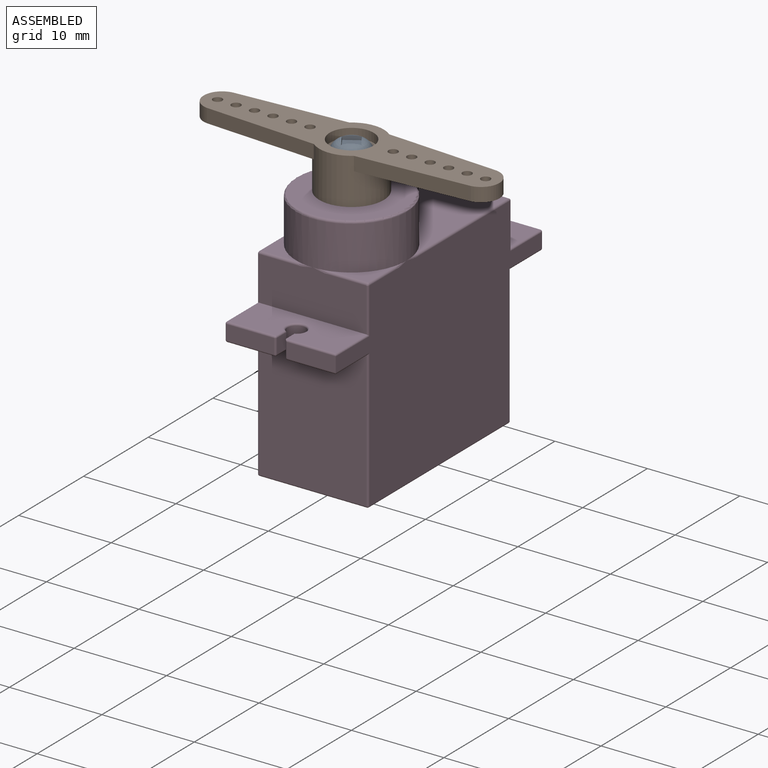
[diagram: assembled view]
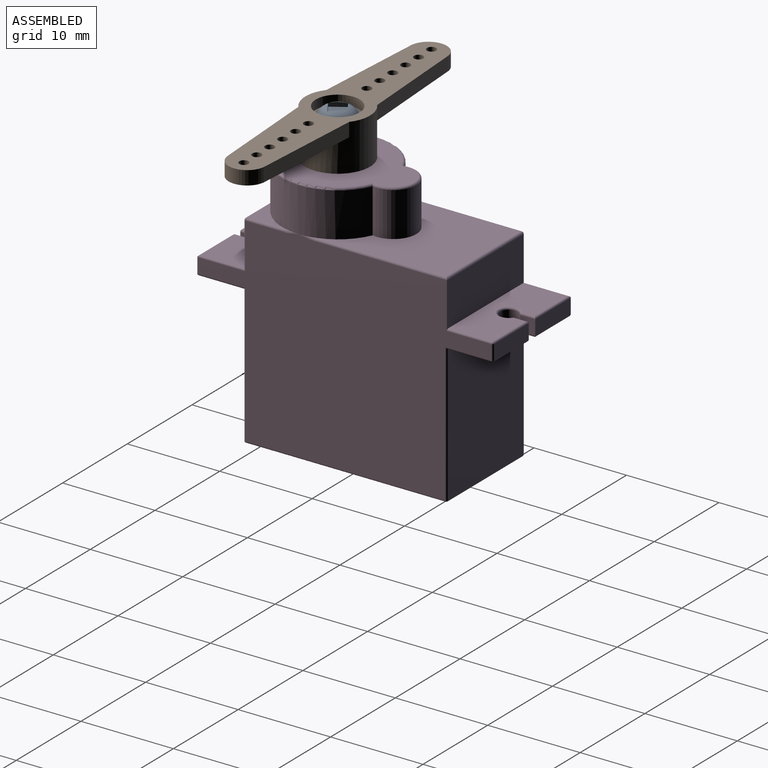
[diagram: assembled view, second angle]
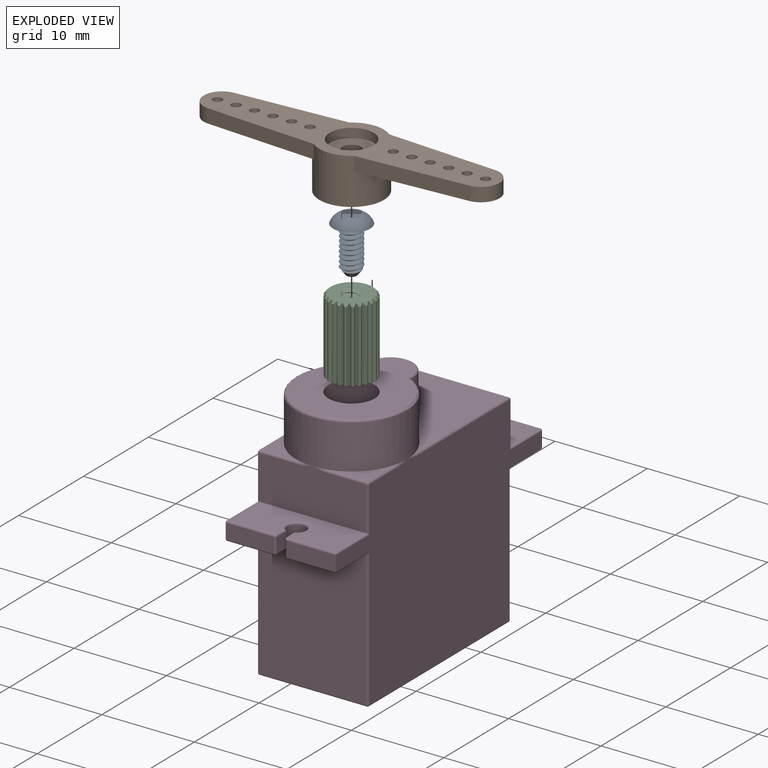
[diagram: exploded view]
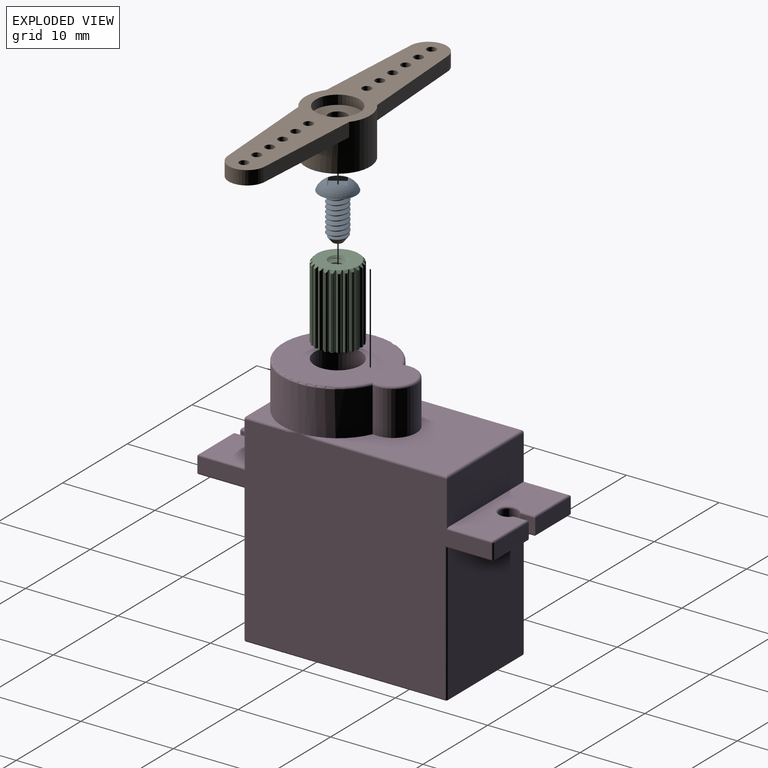
[diagram: exploded view, second angle]
ASSEMBLY  parts=4 mates=3
PART A: 13 faces, bbox 4.3x4.3x6.3 mm
  f0: cylinder r=1.14mm len=4.25mm, axis (0,0,1), area 4.5mm2, adj f1,f3,f4,f5,f6
  f1: cone r=1.14mm half-angle=38.7deg, axis (0,0,1), area 3.3mm2, adj f0,f2,f4,f5
  f2: plane 1.07x1.07mm, normal (0,0,-1), area 0.9mm2, adj f1
  f3: plane 0.28x0.2mm, normal (-0.59,0.81,0), area 0mm2, adj f0,f5,f6
  f4: bspline ~5.06x2.62mm, area 23.9mm2, adj f0,f1,f5,f6
  f5: bspline ~5.06x2.62mm, area 23.4mm2, adj f0,f1,f3,f4,f6
  f6: plane 4.29x4.29mm, normal (0,0,-1), area 9.2mm2, adj f0,f3,f4,f5,f12
  f7: plane 1.5x0.96mm, normal (0.54,-0.84,0), area 0.8mm2, adj f8,f10,f11,f12
  f8: plane 1.5x0.96mm, normal (0.84,0.54,0), area 0.8mm2, adj f7,f9,f11,f12
  f9: plane 1.5x0.96mm, normal (-0.54,0.84,0), area 0.8mm2, adj f8,f10,f11,f12
  f10: plane 1.73x1.19mm, normal (-0.84,-0.54,0), area 0.8mm2, adj f7,f9,f11,f12
  f11: plane 2.46x2.46mm, normal (0,0,1), area 3.2mm2, adj f7,f8,f9,f10
  f12: torus R=0.59mm, axis (0,0,-1), area 14mm2, adj f6,f7,f8,f9,f10
PART B: 123 faces, bbox 32x7x5 mm
  f0: cylinder r=3.5mm len=7mm, axis (0,0,-1), area 91mm2, adj f3,f4,f6,f13,f14,f113,f114,f116
  f1: plane 4.98x4.98mm, normal (0,0,1), area 15mm2, adj f2,f17,f18,f19,f20,f21,f22,f23
  f2: cylinder r=1mm len=2mm, axis (0,0,-1), area 7.9mm2, adj f1,f16
  f3: plane 13.84x5.5mm, normal (0,0,1), area 52.7mm2, adj f0,f4,f5,f6,f7,f8,f9,f10
  f4: plane 11.84x1.5mm, normal (-0.06,1,0), area 17.8mm2, adj f0,f3,f5,f13
  f5: cylinder r=2mm len=4mm, axis (0,0,-1), area 9.4mm2, adj f3,f4,f6,f13
  f6: plane 11.84x1.5mm, normal (-0.06,-1,0), area 17.8mm2, adj f0,f3,f5,f13
  f7: cylinder r=0.5mm len=1.5mm, axis (0,0,-1), area 4.7mm2, adj f3,f13
  f8: cylinder r=0.5mm len=1.5mm, axis (0,0,-1), area 4.7mm2, adj f3,f13
  f9: cylinder r=0.5mm len=1.5mm, axis (0,0,-1), area 4.7mm2, adj f3,f13
  f10: cylinder r=0.5mm len=1.5mm, axis (0,0,-1), area 4.7mm2, adj f3,f13
  f11: cylinder r=0.5mm len=1.5mm, axis (0,0,-1), area 4.7mm2, adj f3,f13
  f12: cylinder r=0.5mm len=1.5mm, axis (0,0,-1), area 4.7mm2, adj f3,f13
  f13: plane 32x7mm, normal (0,0,-1), area 126.1mm2, adj f0,f4,f5,f6,f7,f8,f9,f10
  f14: plane 7x7mm, normal (0,0,1), area 20.4mm2, adj f0,f17,f18,f19,f20,f21,f22,f23
  f15: cylinder r=2.38mm len=4.75mm, axis (0,0,-1), area 14.9mm2, adj f13,f16
  f16: plane 4.75x4.75mm, normal (0,0,-1), area 14.6mm2, adj f2,f15
  f17: cylinder r=2.25mm len=2.75mm, axis (0,0,1), area 0.2mm2, adj f1,f14,f18,f112
  f18: cylinder r=1.07mm len=2.75mm, axis (0,0,1), area 0.8mm2, adj f1,f14,f17,f19
  f19: cylinder r=26.69mm len=2.75mm, axis (0,0,1), area 0.6mm2, adj f1,f14,f18,f89
  f20: cylinder r=2.25mm len=2.75mm, axis (0,0,1), area 0.2mm2, adj f1,f14,f21,f89
  f21: cylinder r=1.07mm len=2.75mm, axis (0,0,1), area 0.8mm2, adj f1,f14,f20,f22
  f22: cylinder r=26.69mm len=2.75mm, axis (0,0,1), area 0.6mm2, adj f1,f14,f21,f90
  f23: cylinder r=2.25mm len=2.75mm, axis (0,0,1), area 0.2mm2, adj f1,f14,f24,f90
  f24: cylinder r=1.07mm len=2.75mm, axis (0,0,1), area 0.8mm2, adj f1,f14,f23,f25
  f25: cylinder r=26.69mm len=2.75mm, axis (0,0,1), area 0.6mm2, adj f1,f14,f24,f91
  f26: cylinder r=2.25mm len=2.75mm, axis (0,0,1), area 0.2mm2, adj f1,f14,f27,f91
  f27: cylinder r=1.07mm len=2.75mm, axis (0,0,1), area 0.8mm2, adj f1,f14,f26,f28
  f28: cylinder r=26.69mm len=2.75mm, axis (0,0,1), area 0.6mm2, adj f1,f14,f27,f92
  f29: cylinder r=2.25mm len=2.75mm, axis (0,0,1), area 0.2mm2, adj f1,f14,f30,f92
  f30: cylinder r=1.07mm len=2.75mm, axis (0,0,1), area 0.8mm2, adj f1,f14,f29,f31
  f31: cylinder r=26.69mm len=2.75mm, axis (0,0,1), area 0.6mm2, adj f1,f14,f30,f93
  f32: cylinder r=2.25mm len=2.75mm, axis (0,0,1), area 0.2mm2, adj f1,f14,f33,f93
  f33: cylinder r=1.07mm len=2.75mm, axis (0,0,1), area 0.8mm2, adj f1,f14,f32,f34
  f34: cylinder r=26.69mm len=2.75mm, axis (0,0,1), area 0.6mm2, adj f1,f14,f33,f94
  f35: cylinder r=2.25mm len=2.75mm, axis (0,0,1), area 0.2mm2, adj f1,f14,f36,f94
  f36: cylinder r=1.07mm len=2.75mm, axis (0,0,1), area 0.8mm2, adj f1,f14,f35,f37
  f37: cylinder r=26.69mm len=2.75mm, axis (0,0,1), area 0.6mm2, adj f1,f14,f36,f95
  f38: cylinder r=2.25mm len=2.75mm, axis (0,0,1), area 0.2mm2, adj f1,f14,f39,f95
  f39: cylinder r=1.07mm len=2.75mm, axis (0,0,1), area 0.8mm2, adj f1,f14,f38,f40
  f40: cylinder r=26.69mm len=2.75mm, axis (0,0,1), area 0.6mm2, adj f1,f14,f39,f96
  f41: cylinder r=2.25mm len=2.75mm, axis (0,0,1), area 0.2mm2, adj f1,f14,f42,f96
  f42: cylinder r=1.07mm len=2.75mm, axis (0,0,1), area 0.8mm2, adj f1,f14,f41,f43
  f43: cylinder r=26.69mm len=2.75mm, axis (0,0,1), area 0.6mm2, adj f1,f14,f42,f97
  f44: cylinder r=2.25mm len=2.75mm, axis (0,0,1), area 0.2mm2, adj f1,f14,f45,f97
  f45: cylinder r=1.07mm len=2.75mm, axis (0,0,1), area 0.8mm2, adj f1,f14,f44,f46
  f46: cylinder r=26.69mm len=2.75mm, axis (0,0,1), area 0.6mm2, adj f1,f14,f45,f98
  f47: cylinder r=2.25mm len=2.75mm, axis (0,0,1), area 0.2mm2, adj f1,f14,f48,f98
  f48: cylinder r=1.07mm len=2.75mm, axis (0,0,1), area 0.8mm2, adj f1,f14,f47,f49
  f49: cylinder r=26.69mm len=2.75mm, axis (0,0,1), area 0.6mm2, adj f1,f14,f48,f99
  f50: cylinder r=2.25mm len=2.75mm, axis (0,0,1), area 0.2mm2, adj f1,f14,f51,f99
  f51: cylinder r=1.07mm len=2.75mm, axis (0,0,1), area 0.8mm2, adj f1,f14,f50,f52
  f52: cylinder r=26.69mm len=2.75mm, axis (0,0,1), area 0.6mm2, adj f1,f14,f51,f100
  f53: cylinder r=2.25mm len=2.75mm, axis (0,0,1), area 0.2mm2, adj f1,f14,f54,f100
  f54: cylinder r=1.07mm len=2.75mm, axis (0,0,1), area 0.8mm2, adj f1,f14,f53,f55
  f55: cylinder r=26.69mm len=2.75mm, axis (0,0,1), area 0.6mm2, adj f1,f14,f54,f101
  f56: cylinder r=2.25mm len=2.75mm, axis (0,0,1), area 0.2mm2, adj f1,f14,f57,f101
  f57: cylinder r=1.07mm len=2.75mm, axis (0,0,1), area 0.8mm2, adj f1,f14,f56,f58
  f58: cylinder r=26.69mm len=2.75mm, axis (0,0,1), area 0.6mm2, adj f1,f14,f57,f102
  f59: cylinder r=2.25mm len=2.75mm, axis (0,0,1), area 0.2mm2, adj f1,f14,f60,f102
  f60: cylinder r=1.07mm len=2.75mm, axis (0,0,1), area 0.8mm2, adj f1,f14,f59,f61
  f61: cylinder r=26.69mm len=2.75mm, axis (0,0,1), area 0.6mm2, adj f1,f14,f60,f103
  f62: cylinder r=2.25mm len=2.75mm, axis (0,0,1), area 0.2mm2, adj f1,f14,f63,f103
  f63: cylinder r=1.07mm len=2.75mm, axis (0,0,1), area 0.8mm2, adj f1,f14,f62,f64
  f64: cylinder r=26.69mm len=2.75mm, axis (0,0,1), area 0.6mm2, adj f1,f14,f63,f104
  f65: cylinder r=2.25mm len=2.75mm, axis (0,0,1), area 0.2mm2, adj f1,f14,f66,f104
  f66: cylinder r=1.07mm len=2.75mm, axis (0,0,1), area 0.8mm2, adj f1,f14,f65,f67
  f67: cylinder r=26.69mm len=2.75mm, axis (0,0,1), area 0.6mm2, adj f1,f14,f66,f105
  f68: cylinder r=2.25mm len=2.75mm, axis (0,0,1), area 0.2mm2, adj f1,f14,f69,f105
  f69: cylinder r=1.07mm len=2.75mm, axis (0,0,1), area 0.8mm2, adj f1,f14,f68,f70
  f70: cylinder r=26.69mm len=2.75mm, axis (0,0,1), area 0.6mm2, adj f1,f14,f69,f106
  f71: cylinder r=2.25mm len=2.75mm, axis (0,0,1), area 0.2mm2, adj f1,f14,f72,f106
  f72: cylinder r=1.07mm len=2.75mm, axis (0,0,1), area 0.8mm2, adj f1,f14,f71,f73
  f73: cylinder r=26.69mm len=2.75mm, axis (0,0,1), area 0.6mm2, adj f1,f14,f72,f107
  f74: cylinder r=2.25mm len=2.75mm, axis (0,0,1), area 0.2mm2, adj f1,f14,f75,f107
  f75: cylinder r=1.07mm len=2.75mm, axis (0,0,1), area 0.8mm2, adj f1,f14,f74,f76
  f76: cylinder r=26.69mm len=2.75mm, axis (0,0,1), area 0.6mm2, adj f1,f14,f75,f108
  f77: cylinder r=2.25mm len=2.75mm, axis (0,0,1), area 0.2mm2, adj f1,f14,f78,f108
  f78: cylinder r=1.07mm len=2.75mm, axis (0,0,1), area 0.8mm2, adj f1,f14,f77,f79
  f79: cylinder r=26.69mm len=2.75mm, axis (0,0,1), area 0.6mm2, adj f1,f14,f78,f109
  f80: cylinder r=2.25mm len=2.75mm, axis (0,0,1), area 0.2mm2, adj f1,f14,f81,f109
  f81: cylinder r=1.07mm len=2.75mm, axis (0,0,1), area 0.8mm2, adj f1,f14,f80,f82
  f82: cylinder r=26.69mm len=2.75mm, axis (0,0,1), area 0.6mm2, adj f1,f14,f81,f110
  f83: cylinder r=2.25mm len=2.75mm, axis (0,0,1), area 0.2mm2, adj f1,f14,f84,f110
  f84: cylinder r=1.07mm len=2.75mm, axis (0,0,1), area 0.8mm2, adj f1,f14,f83,f85
  f85: cylinder r=26.69mm len=2.75mm, axis (0,0,1), area 0.6mm2, adj f1,f14,f84,f111
  f86: cylinder r=2.25mm len=2.75mm, axis (0,0,1), area 0.2mm2, adj f1,f14,f87,f111
  f87: cylinder r=1.07mm len=2.75mm, axis (0,0,1), area 0.8mm2, adj f1,f14,f86,f88
  f88: cylinder r=26.69mm len=2.75mm, axis (0,0,1), area 0.6mm2, adj f1,f14,f87,f112
  f89: cylinder r=1.07mm len=2.75mm, axis (0,0,1), area 0.8mm2, adj f1,f14,f19,f20
  f90: cylinder r=1.07mm len=2.75mm, axis (0,0,1), area 0.8mm2, adj f1,f14,f22,f23
  f91: cylinder r=1.07mm len=2.75mm, axis (0,0,1), area 0.8mm2, adj f1,f14,f25,f26
  f92: cylinder r=1.07mm len=2.75mm, axis (0,0,1), area 0.8mm2, adj f1,f14,f28,f29
  f93: cylinder r=1.07mm len=2.75mm, axis (0,0,1), area 0.8mm2, adj f1,f14,f31,f32
  f94: cylinder r=1.07mm len=2.75mm, axis (0,0,1), area 0.8mm2, adj f1,f14,f34,f35
  f95: cylinder r=1.07mm len=2.75mm, axis (0,0,1), area 0.8mm2, adj f1,f14,f37,f38
  f96: cylinder r=1.07mm len=2.75mm, axis (0,0,1), area 0.8mm2, adj f1,f14,f40,f41
  f97: cylinder r=1.07mm len=2.75mm, axis (0,0,1), area 0.8mm2, adj f1,f14,f43,f44
  f98: cylinder r=1.07mm len=2.75mm, axis (0,0,1), area 0.8mm2, adj f1,f14,f46,f47
  f99: cylinder r=1.07mm len=2.75mm, axis (0,0,1), area 0.8mm2, adj f1,f14,f49,f50
  f100: cylinder r=1.07mm len=2.75mm, axis (0,0,1), area 0.8mm2, adj f1,f14,f52,f53
  f101: cylinder r=1.07mm len=2.75mm, axis (0,0,1), area 0.8mm2, adj f1,f14,f55,f56
  f102: cylinder r=1.07mm len=2.75mm, axis (0,0,1), area 0.8mm2, adj f1,f14,f58,f59
  f103: cylinder r=1.07mm len=2.75mm, axis (0,0,1), area 0.8mm2, adj f1,f14,f61,f62
  f104: cylinder r=1.07mm len=2.75mm, axis (0,0,1), area 0.8mm2, adj f1,f14,f64,f65
  f105: cylinder r=1.07mm len=2.75mm, axis (0,0,1), area 0.8mm2, adj f1,f14,f67,f68
  f106: cylinder r=1.07mm len=2.75mm, axis (0,0,1), area 0.8mm2, adj f1,f14,f70,f71
  f107: cylinder r=1.07mm len=2.75mm, axis (0,0,1), area 0.8mm2, adj f1,f14,f73,f74
  f108: cylinder r=1.07mm len=2.75mm, axis (0,0,1), area 0.8mm2, adj f1,f14,f76,f77
  f109: cylinder r=1.07mm len=2.75mm, axis (0,0,1), area 0.8mm2, adj f1,f14,f79,f80
  f110: cylinder r=1.07mm len=2.75mm, axis (0,0,1), area 0.8mm2, adj f1,f14,f82,f83
  f111: cylinder r=1.07mm len=2.75mm, axis (0,0,1), area 0.8mm2, adj f1,f14,f85,f86
  f112: cylinder r=1.07mm len=2.75mm, axis (0,0,1), area 0.8mm2, adj f1,f14,f17,f88
  f113: plane 13.84x5.5mm, normal (0,0,1), area 52.7mm2, adj f0,f114,f115,f116,f117,f118,f119,f120
  f114: plane 11.84x1.5mm, normal (0.06,1,0), area 17.8mm2, adj f0,f13,f113,f115
  f115: cylinder r=2mm len=4mm, axis (0,0,-1), area 9.4mm2, adj f13,f113,f114,f116
  f116: plane 11.84x1.5mm, normal (0.06,-1,0), area 17.8mm2, adj f0,f13,f113,f115
  f117: cylinder r=0.5mm len=1.5mm, axis (0,0,-1), area 4.7mm2, adj f13,f113
  f118: cylinder r=0.5mm len=1.5mm, axis (0,0,-1), area 4.7mm2, adj f13,f113
  f119: cylinder r=0.5mm len=1.5mm, axis (0,0,-1), area 4.7mm2, adj f13,f113
  f120: cylinder r=0.5mm len=1.5mm, axis (0,0,-1), area 4.7mm2, adj f13,f113
  f121: cylinder r=0.5mm len=1.5mm, axis (0,0,-1), area 4.7mm2, adj f13,f113
  f122: cylinder r=0.5mm len=1.5mm, axis (0,0,-1), area 4.7mm2, adj f13,f113
PART C: 136 faces, bbox 5.1x5.1x8.3 mm
  f0: cylinder r=2.25mm len=8mm, axis (0,0,-1), area 0.6mm2, adj f28,f29,f36,f101
  f1: cylinder r=2.25mm len=8mm, axis (0,0,-1), area 0.6mm2, adj f28,f29,f97,f100
  f2: cylinder r=2.25mm len=8mm, axis (0,0,-1), area 0.6mm2, adj f28,f29,f93,f96
  f3: cylinder r=2.25mm len=8mm, axis (0,0,-1), area 0.6mm2, adj f28,f29,f92,f118
  f4: cylinder r=2.25mm len=8mm, axis (0,0,-1), area 0.6mm2, adj f28,f29,f117,f120
  f5: cylinder r=2.25mm len=8mm, axis (0,0,-1), area 0.6mm2, adj f28,f29,f113,f116
  f6: cylinder r=2.25mm len=8mm, axis (0,0,-1), area 0.6mm2, adj f28,f29,f109,f112
  f7: cylinder r=2.25mm len=8mm, axis (0,0,-1), area 0.6mm2, adj f28,f29,f103,f108
  f8: cylinder r=2.25mm len=8mm, axis (0,0,-1), area 0.6mm2, adj f28,f29,f37,f41
  f9: cylinder r=2.25mm len=8mm, axis (0,0,-1), area 0.6mm2, adj f28,f29,f40,f45
  f10: cylinder r=2.25mm len=8mm, axis (0,0,-1), area 0.6mm2, adj f28,f29,f44,f49
  f11: cylinder r=2.25mm len=8mm, axis (0,0,-1), area 0.6mm2, adj f28,f29,f48,f53
  f12: cylinder r=2.25mm len=8mm, axis (0,0,-1), area 0.6mm2, adj f28,f29,f52,f57
  f13: cylinder r=2.25mm len=8mm, axis (0,0,-1), area 0.6mm2, adj f28,f29,f77,f81
  f14: cylinder r=2.25mm len=8mm, axis (0,0,-1), area 0.6mm2, adj f28,f29,f73,f76
  f15: cylinder r=2.25mm len=8mm, axis (0,0,-1), area 0.6mm2, adj f28,f29,f56,f61
  f16: cylinder r=2.25mm len=8mm, axis (0,0,-1), area 0.6mm2, adj f28,f29,f65,f69
  f17: cylinder r=2.25mm len=8mm, axis (0,0,-1), area 0.6mm2, adj f28,f29,f60,f64
  f18: cylinder r=2.25mm len=8mm, axis (0,0,-1), area 0.6mm2, adj f28,f29,f68,f72
  f19: cylinder r=2.25mm len=8mm, axis (0,0,-1), area 0.6mm2, adj f28,f29,f80,f85
  f20: cylinder r=2.25mm len=8mm, axis (0,0,-1), area 0.6mm2, adj f28,f29,f84,f88
  f21: cylinder r=2.25mm len=8mm, axis (0,0,-1), area 0.6mm2, adj f28,f29,f33,f86
  f22: cylinder r=2.25mm len=8mm, axis (0,0,-1), area 0.6mm2, adj f27,f28,f29,f31
  f23: cylinder r=2.25mm len=8mm, axis (0,0,-1), area 0.6mm2, adj f25,f28,f29,f104
  f24: cone r=26.44mm half-angle=45deg, axis (0,0,-1), area 0.1mm2, adj f25,f26,f27,f28
  f25: cylinder r=1.07mm len=8mm, axis (0,0,-1), area 2.4mm2, adj f23,f24,f26,f28,f29
  f26: cylinder r=26.69mm len=7.75mm, axis (0,0,-1), area 1.6mm2, adj f24,f25,f27,f29
  f27: cylinder r=0.56mm len=8mm, axis (0,0,-1), area 2.4mm2, adj f22,f24,f26,f28,f29
  f28: plane 4.58x4.58mm, normal (0,0,1), area 12.7mm2, adj f0,f1,f2,f3,f4,f5,f6,f7
  f29: plane 4.98x4.98mm, normal (0,0,-1), area 18.2mm2, adj f0,f1,f2,f3,f4,f5,f6,f7
  f30: cone r=26.44mm half-angle=45deg, axis (0,0,-1), area 0.1mm2, adj f28,f31,f32,f33
  f31: cylinder r=1.07mm len=8mm, axis (0,0,-1), area 2.4mm2, adj f22,f28,f29,f30,f32
  f32: cylinder r=26.69mm len=7.75mm, axis (0,0,-1), area 1.6mm2, adj f29,f30,f31,f33
  f33: cylinder r=0.56mm len=8mm, axis (0,0,-1), area 2.4mm2, adj f21,f28,f29,f30,f32
  f34: cylinder r=26.69mm len=7.75mm, axis (0,0,-1), area 1.6mm2, adj f29,f35,f36,f37
  f35: cone r=26.44mm half-angle=45deg, axis (0,0,-1), area 0.1mm2, adj f28,f34,f36,f37
  f36: cylinder r=0.56mm len=8mm, axis (0,0,-1), area 2.4mm2, adj f0,f28,f29,f34,f35
  f37: cylinder r=1.07mm len=8mm, axis (0,0,-1), area 2.4mm2, adj f8,f28,f29,f34,f35
  f38: cylinder r=26.69mm len=7.75mm, axis (0,0,-1), area 1.6mm2, adj f29,f39,f40,f41
  f39: cone r=26.44mm half-angle=45deg, axis (0,0,-1), area 0.1mm2, adj f28,f38,f40,f41
  f40: cylinder r=1.07mm len=8mm, axis (0,0,-1), area 2.4mm2, adj f9,f28,f29,f38,f39
  f41: cylinder r=0.56mm len=8mm, axis (0,0,-1), area 2.4mm2, adj f8,f28,f29,f38,f39
  f42: cylinder r=26.69mm len=7.75mm, axis (0,0,-1), area 1.6mm2, adj f29,f43,f44,f45
  f43: cone r=26.44mm half-angle=45deg, axis (0,0,-1), area 0.1mm2, adj f28,f42,f44,f45
  f44: cylinder r=1.07mm len=8mm, axis (0,0,-1), area 2.4mm2, adj f10,f28,f29,f42,f43
  f45: cylinder r=0.56mm len=8mm, axis (0,0,-1), area 2.4mm2, adj f9,f28,f29,f42,f43
  f46: cylinder r=26.69mm len=7.75mm, axis (0,0,-1), area 1.6mm2, adj f29,f47,f48,f49
  f47: cone r=26.44mm half-angle=45deg, axis (0,0,-1), area 0.1mm2, adj f28,f46,f48,f49
  f48: cylinder r=1.07mm len=8mm, axis (0,0,-1), area 2.4mm2, adj f11,f28,f29,f46,f47
  f49: cylinder r=0.56mm len=8mm, axis (0,0,-1), area 2.4mm2, adj f10,f28,f29,f46,f47
  f50: cylinder r=26.69mm len=7.75mm, axis (0,0,-1), area 1.6mm2, adj f29,f51,f52,f53
  f51: cone r=26.44mm half-angle=45deg, axis (0,0,-1), area 0.1mm2, adj f28,f50,f52,f53
  f52: cylinder r=1.07mm len=8mm, axis (0,0,-1), area 2.4mm2, adj f12,f28,f29,f50,f51
  f53: cylinder r=0.56mm len=8mm, axis (0,0,-1), area 2.4mm2, adj f11,f28,f29,f50,f51
  f54: cylinder r=26.69mm len=7.75mm, axis (0,0,-1), area 1.6mm2, adj f29,f55,f56,f57
  f55: cone r=26.44mm half-angle=45deg, axis (0,0,-1), area 0.1mm2, adj f28,f54,f56,f57
  f56: cylinder r=1.07mm len=8mm, axis (0,0,-1), area 2.4mm2, adj f15,f28,f29,f54,f55
  f57: cylinder r=0.56mm len=8mm, axis (0,0,-1), area 2.4mm2, adj f12,f28,f29,f54,f55
  f58: cylinder r=26.69mm len=7.75mm, axis (0,0,-1), area 1.6mm2, adj f29,f59,f60,f61
  f59: cone r=26.44mm half-angle=45deg, axis (0,0,-1), area 0.1mm2, adj f28,f58,f60,f61
  f60: cylinder r=1.07mm len=8mm, axis (0,0,-1), area 2.4mm2, adj f17,f28,f29,f58,f59
  f61: cylinder r=0.56mm len=8mm, axis (0,0,-1), area 2.4mm2, adj f15,f28,f29,f58,f59
  f62: cylinder r=26.69mm len=7.75mm, axis (0,0,-1), area 1.6mm2, adj f29,f63,f64,f65
  f63: cone r=26.44mm half-angle=45deg, axis (0,0,-1), area 0.1mm2, adj f28,f62,f64,f65
  f64: cylinder r=0.56mm len=8mm, axis (0,0,-1), area 2.4mm2, adj f17,f28,f29,f62,f63
  f65: cylinder r=1.07mm len=8mm, axis (0,0,-1), area 2.4mm2, adj f16,f28,f29,f62,f63
  f66: cylinder r=26.69mm len=7.75mm, axis (0,0,-1), area 1.6mm2, adj f29,f67,f68,f69
  f67: cone r=26.44mm half-angle=45deg, axis (0,0,-1), area 0.1mm2, adj f28,f66,f68,f69
  f68: cylinder r=1.07mm len=8mm, axis (0,0,-1), area 2.4mm2, adj f18,f28,f29,f66,f67
  f69: cylinder r=0.56mm len=8mm, axis (0,0,-1), area 2.4mm2, adj f16,f28,f29,f66,f67
  f70: cylinder r=26.69mm len=7.75mm, axis (0,0,-1), area 1.6mm2, adj f29,f71,f72,f73
  f71: cone r=26.44mm half-angle=45deg, axis (0,0,-1), area 0.1mm2, adj f28,f70,f72,f73
  f72: cylinder r=0.56mm len=8mm, axis (0,0,-1), area 2.4mm2, adj f18,f28,f29,f70,f71
  f73: cylinder r=1.07mm len=8mm, axis (0,0,-1), area 2.4mm2, adj f14,f28,f29,f70,f71
  f74: cylinder r=26.69mm len=7.75mm, axis (0,0,-1), area 1.6mm2, adj f29,f75,f76,f77
  f75: cone r=26.44mm half-angle=45deg, axis (0,0,-1), area 0.1mm2, adj f28,f74,f76,f77
  f76: cylinder r=0.56mm len=8mm, axis (0,0,-1), area 2.4mm2, adj f14,f28,f29,f74,f75
  f77: cylinder r=1.07mm len=8mm, axis (0,0,-1), area 2.4mm2, adj f13,f28,f29,f74,f75
  f78: cylinder r=26.69mm len=7.75mm, axis (0,0,-1), area 1.6mm2, adj f29,f79,f80,f81
  f79: cone r=26.44mm half-angle=45deg, axis (0,0,-1), area 0.1mm2, adj f28,f78,f80,f81
  f80: cylinder r=1.07mm len=8mm, axis (0,0,-1), area 2.4mm2, adj f19,f28,f29,f78,f79
  f81: cylinder r=0.56mm len=8mm, axis (0,0,-1), area 2.4mm2, adj f13,f28,f29,f78,f79
  f82: cylinder r=26.69mm len=7.75mm, axis (0,0,-1), area 1.6mm2, adj f29,f83,f84,f85
  f83: cone r=26.44mm half-angle=45deg, axis (0,0,-1), area 0.1mm2, adj f28,f82,f84,f85
  f84: cylinder r=1.07mm len=8mm, axis (0,0,-1), area 2.4mm2, adj f20,f28,f29,f82,f83
  f85: cylinder r=0.56mm len=8mm, axis (0,0,-1), area 2.4mm2, adj f19,f28,f29,f82,f83
  f86: cylinder r=1.07mm len=8mm, axis (0,0,-1), area 2.4mm2, adj f21,f28,f29,f87,f89
  f87: cylinder r=26.69mm len=7.75mm, axis (0,0,-1), area 1.6mm2, adj f29,f86,f88,f89
  f88: cylinder r=0.56mm len=8mm, axis (0,0,-1), area 2.4mm2, adj f20,f28,f29,f87,f89
  f89: cone r=26.44mm half-angle=45deg, axis (0,0,-1), area 0.1mm2, adj f28,f86,f87,f88
  f90: cylinder r=26.69mm len=7.75mm, axis (0,0,-1), area 1.6mm2, adj f29,f91,f92,f93
  f91: cone r=26.44mm half-angle=45deg, axis (0,0,-1), area 0.1mm2, adj f28,f90,f92,f93
  f92: cylinder r=0.56mm len=8mm, axis (0,0,-1), area 2.4mm2, adj f3,f28,f29,f90,f91
  f93: cylinder r=1.07mm len=8mm, axis (0,0,-1), area 2.4mm2, adj f2,f28,f29,f90,f91
  f94: cylinder r=26.69mm len=7.75mm, axis (0,0,-1), area 1.6mm2, adj f29,f95,f96,f97
  f95: cone r=26.44mm half-angle=45deg, axis (0,0,-1), area 0.1mm2, adj f28,f94,f96,f97
  f96: cylinder r=0.56mm len=8mm, axis (0,0,-1), area 2.4mm2, adj f2,f28,f29,f94,f95
  f97: cylinder r=1.07mm len=8mm, axis (0,0,-1), area 2.4mm2, adj f1,f28,f29,f94,f95
  f98: cylinder r=26.69mm len=7.75mm, axis (0,0,-1), area 1.6mm2, adj f29,f99,f100,f101
  f99: cone r=26.44mm half-angle=45deg, axis (0,0,-1), area 0.1mm2, adj f28,f98,f100,f101
  f100: cylinder r=0.56mm len=8mm, axis (0,0,-1), area 2.4mm2, adj f1,f28,f29,f98,f99
  f101: cylinder r=1.07mm len=8mm, axis (0,0,-1), area 2.4mm2, adj f0,f28,f29,f98,f99
  f102: cylinder r=26.69mm len=7.75mm, axis (0,0,-1), area 1.6mm2, adj f29,f103,f104,f105
  f103: cylinder r=1.07mm len=8mm, axis (0,0,-1), area 2.4mm2, adj f7,f28,f29,f102,f105
  f104: cylinder r=0.56mm len=8mm, axis (0,0,-1), area 2.4mm2, adj f23,f28,f29,f102,f105
  f105: cone r=26.44mm half-angle=45deg, axis (0,0,-1), area 0.1mm2, adj f28,f102,f103,f104
  f106: cylinder r=26.69mm len=7.75mm, axis (0,0,-1), area 1.6mm2, adj f29,f107,f108,f109
  f107: cone r=26.44mm half-angle=45deg, axis (0,0,-1), area 0.1mm2, adj f28,f106,f108,f109
  f108: cylinder r=0.56mm len=8mm, axis (0,0,-1), area 2.4mm2, adj f7,f28,f29,f106,f107
  f109: cylinder r=1.07mm len=8mm, axis (0,0,-1), area 2.4mm2, adj f6,f28,f29,f106,f107
  f110: cylinder r=26.69mm len=7.75mm, axis (0,0,-1), area 1.6mm2, adj f29,f111,f112,f113
  f111: cone r=26.44mm half-angle=45deg, axis (0,0,-1), area 0.1mm2, adj f28,f110,f112,f113
  f112: cylinder r=0.56mm len=8mm, axis (0,0,-1), area 2.4mm2, adj f6,f28,f29,f110,f111
  f113: cylinder r=1.07mm len=8mm, axis (0,0,-1), area 2.4mm2, adj f5,f28,f29,f110,f111
  f114: cylinder r=26.69mm len=7.75mm, axis (0,0,-1), area 1.6mm2, adj f29,f115,f116,f117
  f115: cone r=26.44mm half-angle=45deg, axis (0,0,-1), area 0.1mm2, adj f28,f114,f116,f117
  f116: cylinder r=0.56mm len=8mm, axis (0,0,-1), area 2.4mm2, adj f5,f28,f29,f114,f115
  f117: cylinder r=1.07mm len=8mm, axis (0,0,-1), area 2.4mm2, adj f4,f28,f29,f114,f115
  f118: cylinder r=1.07mm len=8mm, axis (0,0,-1), area 2.4mm2, adj f3,f28,f29,f119,f121
  f119: cylinder r=26.69mm len=7.75mm, axis (0,0,-1), area 1.6mm2, adj f29,f118,f120,f121
  f120: cylinder r=0.56mm len=8mm, axis (0,0,-1), area 2.4mm2, adj f4,f28,f29,f119,f121
  f121: cone r=26.44mm half-angle=45deg, axis (0,0,-1), area 0.1mm2, adj f28,f118,f119,f120
  f122: cylinder r=0.75mm len=1.5mm, axis (0,0,1), area 0.2mm2, adj f123,f132,f134,f135
  f123: cylinder r=0.75mm len=1.5mm, axis (0,0,1), area 0.2mm2, adj f122,f124,f134,f135
  f124: cylinder r=0.75mm len=1.5mm, axis (0,0,1), area 0.2mm2, adj f123,f125,f134,f135
  f125: cylinder r=0.75mm len=1.5mm, axis (0,0,1), area 0.2mm2, adj f124,f126,f134,f135
  f126: cylinder r=0.75mm len=1.5mm, axis (0,0,1), area 0.2mm2, adj f125,f127,f134,f135
  f127: cylinder r=0.75mm len=1.5mm, axis (0,0,1), area 0.2mm2, adj f126,f128,f134,f135
  f128: cylinder r=0.75mm len=1.5mm, axis (0,0,1), area 0.2mm2, adj f127,f129,f134,f135
  f129: cylinder r=0.75mm len=1.5mm, axis (0,0,1), area 1.5mm2, adj f128,f131,f133,f134,f135
  f130: plane 0.5x0.5mm, normal (0,0,1), area 0.2mm2, adj f131
  f131: cone r=0.25mm half-angle=45deg, axis (0,0,1), area 2.2mm2, adj f129,f130
  f132: cone r=0.75mm half-angle=45deg, axis (0,0,1), area 0.8mm2, adj f28,f122,f134,f135
  f133: plane 0.45x0.39mm, normal (0,-1,0), area 0.1mm2, adj f129,f134,f135
  f134: bspline ~4.56x2.63mm, area 22.7mm2, adj f28,f122,f123,f124,f125,f126,f127,f128
  f135: bspline ~4.48x2.63mm, area 21.7mm2, adj f28,f122,f123,f124,f125,f126,f127,f128
PART D: 108 faces, bbox 13.1x32.1x27.1 mm
  f0: plane 17x17mm, normal (1,0,0), area 210.5mm2, adj f1,f3,f4,f5,f6
  f1: plane 17x7mm, normal (0,-1,0), area 119mm2, adj f0,f2,f3,f5
  f2: plane 17x17mm, normal (-1,0,0), area 289mm2, adj f1,f3,f4,f5
  f3: plane 17x7mm, normal (0,0,1), area 119mm2, adj f0,f1,f2,f4
  f4: plane 17x7mm, normal (0,1,0), area 119mm2, adj f0,f2,f3,f5
  f5: plane 17x7mm, normal (0,0,-1), area 119mm2, adj f0,f1,f2,f4
  f6: cylinder r=5mm len=10mm, axis (-1,0,0), area 78.5mm2, adj f0,f7
  f7: plane 31.88x21.88mm, normal (-1,0,0), area 403.6mm2, adj f6,f8,f94,f95,f96,f97,f98,f99
  f8: cylinder r=0.25mm len=14.09mm, axis (0,1,0), area 5.5mm2, adj f7,f9,f93,f94
  f9: bspline ~0.31x0.25mm, area 0.1mm2, adj f8,f10,f107
  f10: cylinder r=0.25mm len=11.8mm, axis (1,0,0), area 4.6mm2, adj f9,f11,f92,f93
  f11: cylinder r=0.25mm len=14.29mm, axis (0,-1,0), area 5.6mm2, adj f10,f12,f91,f93
  f12: plane 31.88x21.88mm, normal (1,0,0), area 483.1mm2, adj f11,f13,f80,f81,f82,f83,f84,f85
  f13: cylinder r=0.25mm len=4.09mm, axis (0,-1,0), area 1.6mm2, adj f12,f14,f79,f80
  f14: bspline ~0.31x0.25mm, area 0.1mm2, adj f13,f15,f90
  f15: cylinder r=0.25mm len=4.09mm, axis (-1,0,0), area 1.6mm2, adj f14,f16,f28,f79
  f16: bspline ~1.79x0.28mm, area 0.2mm2, adj f15,f17,f28
  f17: cylinder r=6mm len=12mm, axis (0,0,-1), area 155.1mm2, adj f16,f18,f21,f22,f27,f79,f80,f91
  f18: bspline ~1.79x0.28mm, area 0.2mm2, adj f17,f19,f28
  f19: cylinder r=0.25mm len=4.09mm, axis (-1,0,0), area 1.6mm2, adj f18,f20,f21,f28
  f20: bspline ~0.31x0.25mm, area 0.1mm2, adj f19,f96,f97
  f21: plane 4.04x4.04mm, normal (0,0,1), area 5.4mm2, adj f17,f19,f96
  f22: torus R=5.75mm, axis (0,0,1), area 12.7mm2, adj f17,f23,f26
  f23: plane 14x11.5mm, normal (0,0,1), area 93.9mm2, adj f22,f24,f26
  f24: cylinder r=2.5mm len=5mm, axis (0,0,-1), area 78.5mm2, adj f23,f25
  f25: plane 5x5mm, normal (0,0,1), area 19.6mm2, adj f24
  f26: torus R=2.25mm, axis (0,0,1), area 3.5mm2, adj f22,f23,f27
  f27: cylinder r=2.5mm len=5mm, axis (0,0,-1), area 42.3mm2, adj f17,f26,f93
  f28: plane 11.7x5.1mm, normal (0,-1,0), area 55.4mm2, adj f15,f16,f18,f19,f29,f90,f97
  f29: plane 11.6x4.8mm, normal (0,0,1), area 49.8mm2, adj f28,f30,f74,f75,f77,f78,f89,f98
  f30: torus R=1.2mm, axis (0,0,1), area 1.8mm2, adj f29,f31,f74,f78
  f31: cylinder r=1mm len=2mm, axis (0,0,1), area 8.4mm2, adj f30,f32,f73,f78
  f32: plane 1.6x1.43mm, normal (1,0,0), area 2.3mm2, adj f31,f33,f71,f74
  f33: cylinder r=0.2mm len=1.43mm, axis (0,-1,0), area 0.4mm2, adj f32,f34,f70,f73
  f34: plane 11.6x4.8mm, normal (0,0,-1), area 49.5mm2, adj f33,f35,f38,f41,f42,f73,f87,f100
  f35: cylinder r=0.2mm len=5.1mm, axis (-1,0,0), area 1.6mm2, adj f34,f36,f37,f70
  f36: sphere r=0.2mm, area 0.1mm2, adj f35,f99,f100
  f37: plane 5.1x1.6mm, normal (0,-1,0), area 8.2mm2, adj f35,f71,f75,f99
  f38: cylinder r=0.2mm len=1.43mm, axis (0,1,0), area 0.4mm2, adj f34,f39,f73,f78
  f39: sphere r=0.2mm, area 0.1mm2, adj f38,f40,f41
  f40: cylinder r=0.2mm len=1.8mm, axis (0,0,1), area 0.5mm2, adj f39,f77,f78,f88
  f41: cylinder r=0.2mm len=5.3mm, axis (-1,0,0), area 1.6mm2, adj f34,f39,f87,f88
  f42: plane 14.8x11.6mm, normal (0,-1,0), area 171.7mm2, adj f34,f43,f86,f101
  f43: cylinder r=0.2mm len=11.6mm, axis (1,0,0), area 3.6mm2, adj f42,f44,f45,f69
  f44: sphere r=0.2mm, area 0.1mm2, adj f43,f85,f86
  f45: plane 21.6x11.6mm, normal (0,0,-1), area 250.6mm2, adj f43,f46,f85,f102
  f46: cylinder r=0.2mm len=11.6mm, axis (-1,0,0), area 3.6mm2, adj f45,f47,f48,f49,f68
  f47: sphere r=0.2mm, area 0mm2, adj f46,f84,f85
  f48: sphere r=0.2mm, area 0mm2, adj f46,f85
  f49: plane 14.8x11.6mm, normal (0,1,0), area 171.7mm2, adj f46,f50,f84,f103
  f50: plane 11.6x4.8mm, normal (0,0,-1), area 49.5mm2, adj f49,f51,f64,f65,f66,f67,f83,f104
  f51: cylinder r=0.2mm len=5.3mm, axis (1,0,0), area 1.6mm2, adj f50,f52,f53,f64
  f52: sphere r=0.2mm, area 0mm2, adj f51,f82,f83
  f53: plane 5.3x1.6mm, normal (0,1,0), area 8.5mm2, adj f51,f54,f63,f82
  f54: cylinder r=0.2mm len=5.3mm, axis (-1,0,0), area 1.6mm2, adj f53,f55,f61,f62
  f55: plane 11.6x4.8mm, normal (0,0,1), area 49.5mm2, adj f54,f56,f59,f60,f61,f81,f92,f106
  f56: cylinder r=0.2mm len=1.63mm, axis (0,1,0), area 0.5mm2, adj f55,f57,f59,f60
  f57: plane 1.63x1.6mm, normal (1,0,0), area 2.6mm2, adj f56,f58,f66,f105
  f58: cylinder r=1mm len=2mm, axis (0,0,1), area 8.4mm2, adj f57,f59,f63,f65
  f59: torus R=1.2mm, axis (0,0,1), area 1.7mm2, adj f55,f56,f58,f61
  f60: cylinder r=0.2mm len=5.5mm, axis (-1,0,0), area 1.7mm2, adj f55,f56,f105,f106
  f61: cylinder r=0.2mm len=1.63mm, axis (0,-1,0), area 0.5mm2, adj f54,f55,f59,f63
  f62: sphere r=0.2mm, area 0.1mm2, adj f54,f81,f82
  f63: plane 1.63x1.6mm, normal (-1,0,0), area 2.6mm2, adj f53,f58,f61,f64
  f64: cylinder r=0.2mm len=1.63mm, axis (0,1,0), area 0.5mm2, adj f50,f51,f63,f65
  f65: torus R=1.2mm, axis (0,0,1), area 1.7mm2, adj f50,f58,f64,f66
  f66: cylinder r=0.2mm len=1.63mm, axis (0,-1,0), area 0.5mm2, adj f50,f57,f65,f67
  f67: cylinder r=0.2mm len=5.5mm, axis (1,0,0), area 1.7mm2, adj f50,f66,f104,f105
  f68: sphere r=0.2mm, area 0.1mm2, adj f46,f102,f103
  f69: sphere r=0.2mm, area 0.1mm2, adj f43,f101,f102
  f70: sphere r=0.2mm, area 0.1mm2, adj f33,f35,f71
  f71: cylinder r=0.2mm len=1.6mm, axis (0,0,-1), area 0.5mm2, adj f32,f37,f70,f72
  f72: sphere r=0.2mm, area 0.1mm2, adj f71,f74,f75
  f73: torus R=1.2mm, axis (0,0,1), area 1.7mm2, adj f31,f33,f34,f38
  f74: cylinder r=0.2mm len=1.43mm, axis (0,1,0), area 0.4mm2, adj f29,f30,f32,f72
  f75: cylinder r=0.2mm len=5.1mm, axis (1,0,0), area 1.6mm2, adj f29,f37,f72,f76
  f76: sphere r=0.2mm, area 0.1mm2, adj f75,f98,f99
  f77: cylinder r=0.2mm len=5.5mm, axis (1,0,0), area 1.7mm2, adj f29,f40,f88,f89
  f78: plane 1.83x1.47mm, normal (-1,0,0), area 2.6mm2, adj f29,f30,f31,f38,f40
  f79: plane 4.04x4.04mm, normal (0,0,1), area 5.4mm2, adj f13,f15,f17
  f80: bspline ~1.79x0.28mm, area 0.2mm2, adj f12,f13,f17
  f81: cylinder r=0.2mm len=4.8mm, axis (0,-1,0), area 1.5mm2, adj f12,f55,f62,f92
  f82: cylinder r=0.2mm len=1.6mm, axis (0,0,-1), area 0.5mm2, adj f12,f52,f53,f62
  f83: cylinder r=0.2mm len=5mm, axis (0,1,0), area 1.5mm2, adj f12,f50,f52,f84
  f84: cylinder r=0.2mm len=15mm, axis (0,0,-1), area 4.7mm2, adj f12,f47,f49,f83
  f85: cylinder r=0.2mm len=21.6mm, axis (0,1,0), area 6.8mm2, adj f12,f44,f45,f47,f48
  f86: cylinder r=0.2mm len=15mm, axis (0,0,1), area 4.7mm2, adj f12,f42,f44,f87
  f87: cylinder r=0.2mm len=5.2mm, axis (0,-1,0), area 1.6mm2, adj f12,f34,f41,f86
  f88: plane 5.3x1.6mm, normal (0,-1,0), area 8.5mm2, adj f12,f40,f41,f77
  f89: cylinder r=0.2mm len=5.2mm, axis (0,1,0), area 1.6mm2, adj f12,f29,f77,f90
  f90: cylinder r=0.2mm len=4.95mm, axis (0,0,1), area 1.5mm2, adj f12,f14,f28,f89
  f91: bspline ~1.79x0.28mm, area 0.2mm2, adj f11,f12,f17
  f92: plane 11.8x4.95mm, normal (0,1,0), area 56.1mm2, adj f10,f12,f55,f81,f107
  f93: plane 14.04x11.5mm, normal (0,0,1), area 114.5mm2, adj f8,f10,f11,f17,f27
  f94: bspline ~1.79x0.28mm, area 0.2mm2, adj f7,f8,f17
  f95: bspline ~1.79x0.28mm, area 0.2mm2, adj f7,f17,f96
  f96: cylinder r=0.25mm len=4.09mm, axis (0,1,0), area 1.6mm2, adj f7,f20,f21,f95
  f97: cylinder r=0.2mm len=4.95mm, axis (0,0,-1), area 1.5mm2, adj f7,f20,f28,f98
  f98: cylinder r=0.2mm len=5mm, axis (0,-1,0), area 1.5mm2, adj f7,f29,f76,f97
  f99: cylinder r=0.2mm len=1.6mm, axis (0,0,1), area 0.5mm2, adj f7,f36,f37,f76
  f100: cylinder r=0.2mm len=5mm, axis (0,1,0), area 1.5mm2, adj f7,f34,f36,f101
  f101: cylinder r=0.2mm len=15mm, axis (0,0,-1), area 4.7mm2, adj f7,f42,f69,f100
  f102: cylinder r=0.2mm len=21.6mm, axis (0,-1,0), area 6.8mm2, adj f7,f45,f68,f69
  f103: cylinder r=0.2mm len=15mm, axis (0,0,1), area 4.7mm2, adj f7,f49,f68,f104
  f104: cylinder r=0.2mm len=5.2mm, axis (0,-1,0), area 1.6mm2, adj f7,f50,f67,f103
  f105: plane 5.5x1.6mm, normal (0,1,0), area 8.8mm2, adj f7,f57,f60,f67
  f106: cylinder r=0.2mm len=5.2mm, axis (0,1,0), area 1.6mm2, adj f7,f55,f60,f107
  f107: cylinder r=0.2mm len=4.95mm, axis (0,0,1), area 1.5mm2, adj f7,f9,f92,f106
PLACE A t=(3.54,-20.75,18.6)mm
PLACE B rot(axis=(-1,0,0),180deg) t=(3.54,-20.75,24.6)mm
PLACE C rot(axis=(0,0,1),180deg) t=(3.53,-20.74,14.35)mm
PLACE D t=(5.77,-4.34,-7.65)mm fixed
MATE fastened B.f0 <-> C.f28  axis (0,0,-1) through (3.54,-20.75,22.35)mm
MATE revolute D.f17 <-> C.f0  axis (0,0,1) through (3.53,-20.74,14.35)mm
MATE pin_slot B.f0 <-> A.f0  axis (0,0,1) through (3.54,-20.75,23.6)mm
